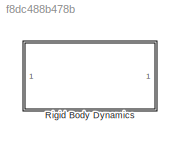
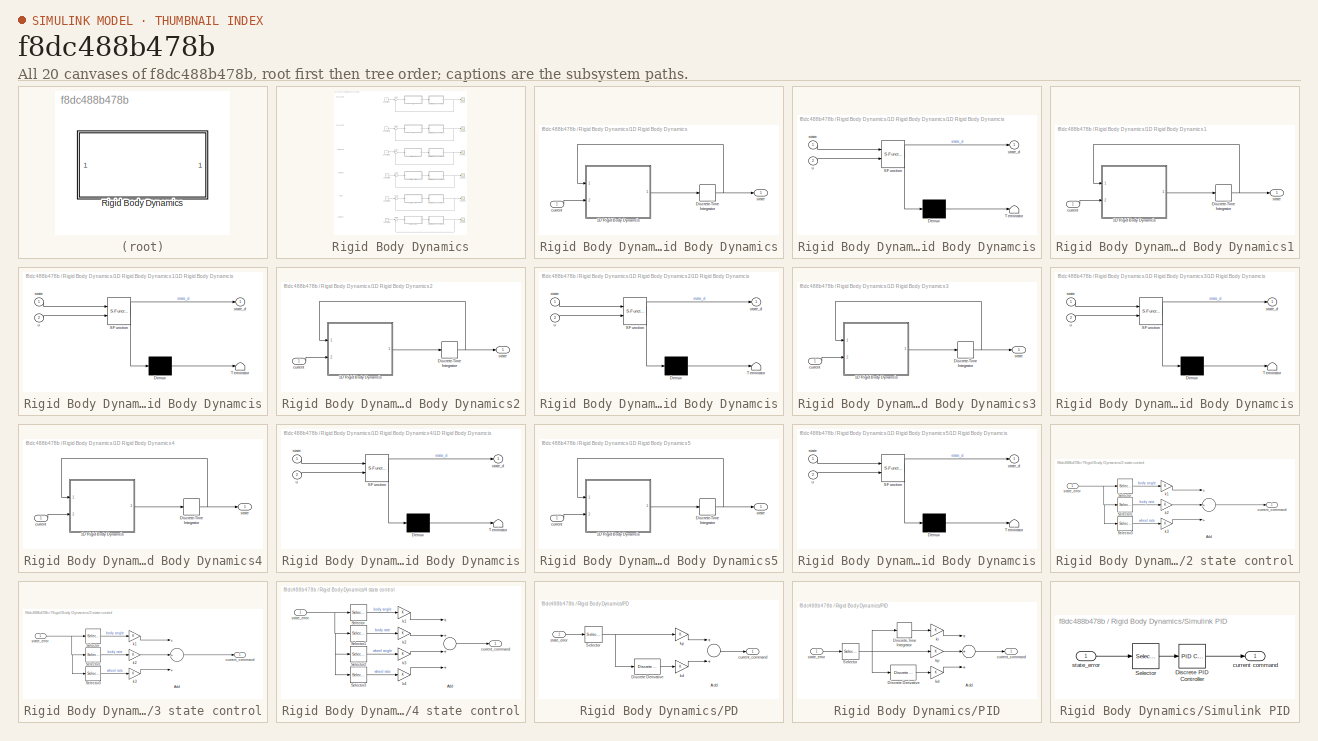
[diagram: thumbnail index - all 20 canvases of the model, root first then tree order]
MODEL slx_f8dc488b478b
KIND model
CONFIG AbsTol = auto
CONFIG EnableMultiTasking = off
CONFIG FixedStep = auto
CONFIG MaxStep = auto
CONFIG MinStep = auto
CONFIG RelTol = 1e-3
CONFIG SampleTimeConstraint = Unconstrained
CONFIG Solver = VariableStepAuto
CONFIG SolverName = VariableStepAuto
CONFIG StartTime = 0.0
CONFIG StopTime = 10.0
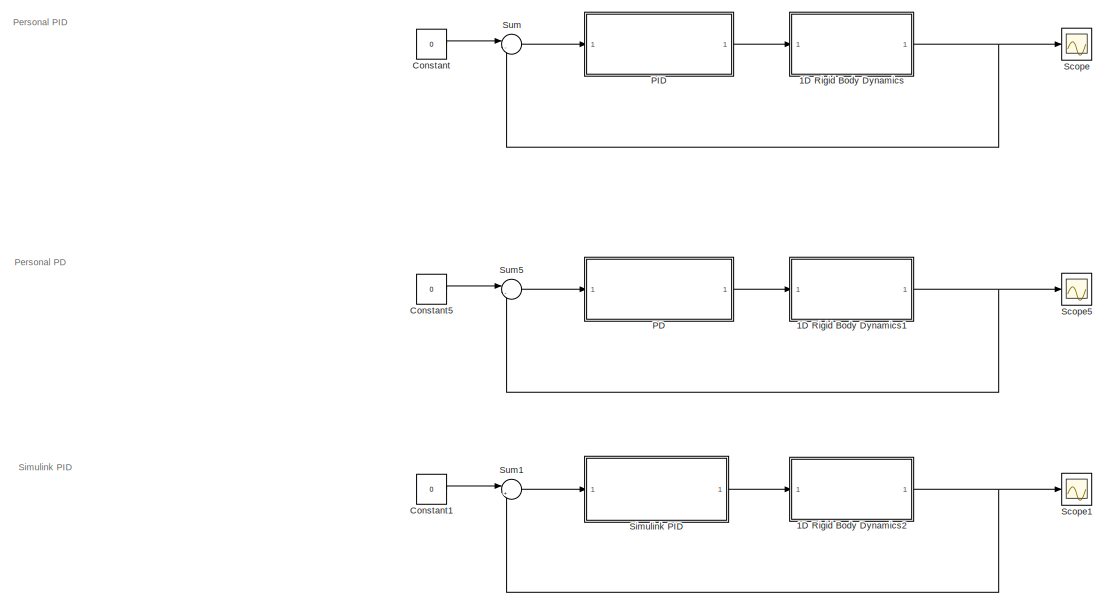
[diagram: Rigid Body Dynamics - part 1/2, full width, top band]
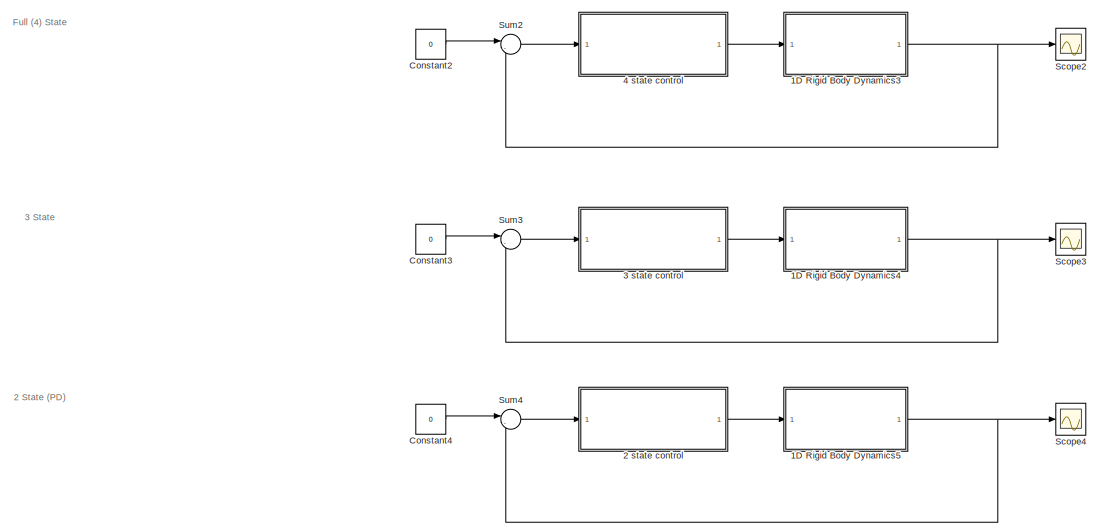
[diagram: Rigid Body Dynamics - part 2/2, full width, bottom band]
BLOCK [SubSystem] Rigid Body Dynamics
  Ports = []
  RequestExecContextInheritance = off
BLOCK [SubSystem] Rigid Body Dynamics/1D Rigid Body Dynamics
  Ports = [1, 1]
  RequestExecContextInheritance = off
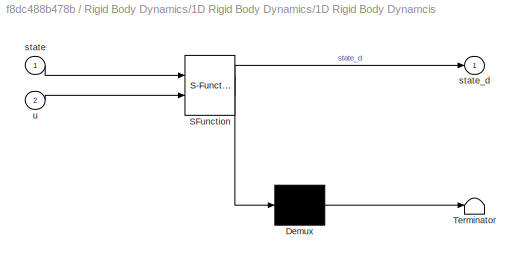
BLOCK [SubSystem] Rigid Body Dynamics/1D Rigid Body Dynamics/1D Rigid Body Dynamcis
  ErrorFcn = Stateflow.Translate.translate
  PermitHierarchicalResolution = ExplicitOnly
  Ports = [2, 1]
  RequestExecContextInheritance = off
  SFBlockType = MATLAB Function
  TreatAsAtomicUnit = on
BLOCK [Demux] Rigid Body Dynamics/1D Rigid Body Dynamics/1D Rigid Body Dynamcis/ Demux 
  Outputs = 1
  Ports = [1, 1]
BLOCK [S-Function] Rigid Body Dynamics/1D Rigid Body Dynamics/1D Rigid Body Dynamcis/ SFunction 
  EnableBusSupport = on
  FunctionName = sf_sfun
  PortCounts = [2 2]
  Ports = [2, 2]
  SFcnIsStateOwnerBlock = off
  SFunctionDeploymentMode = off
  Tag = Stateflow S-Function main 2
BLOCK [Terminator] Rigid Body Dynamics/1D Rigid Body Dynamics/1D Rigid Body Dynamcis/ Terminator 
BLOCK [Inport] Rigid Body Dynamics/1D Rigid Body Dynamics/1D Rigid Body Dynamcis/state
  IconDisplay = Port number
BLOCK [Outport] Rigid Body Dynamics/1D Rigid Body Dynamics/1D Rigid Body Dynamcis/state_d
  IconDisplay = Port number
BLOCK [Inport] Rigid Body Dynamics/1D Rigid Body Dynamics/1D Rigid Body Dynamcis/u
  IconDisplay = Port number
  Port = 2
BLOCK [DiscreteIntegrator] Rigid Body Dynamics/1D Rigid Body Dynamics/Discrete-Time Integrator
  ICPrevOutput = DiscIntNeverNeededParam
  ICPrevScaledInput = DiscIntNeverNeededParam
  InitialCondition = [0 0 0 0]
  InitialConditionSetting = Auto
  Ports = [1, 1]
  SampleTime = -1
BLOCK [Inport] Rigid Body Dynamics/1D Rigid Body Dynamics/current
  IconDisplay = Port number
BLOCK [Outport] Rigid Body Dynamics/1D Rigid Body Dynamics/state
  IconDisplay = Port number
BLOCK [SubSystem] Rigid Body Dynamics/1D Rigid Body Dynamics1
  Ports = [1, 1]
  RequestExecContextInheritance = off
BLOCK [SubSystem] Rigid Body Dynamics/1D Rigid Body Dynamics1/1D Rigid Body Dynamcis
  ErrorFcn = Stateflow.Translate.translate
  PermitHierarchicalResolution = ExplicitOnly
  Ports = [2, 1]
  RequestExecContextInheritance = off
  SFBlockType = MATLAB Function
  TreatAsAtomicUnit = on
BLOCK [Demux] Rigid Body Dynamics/1D Rigid Body Dynamics1/1D Rigid Body Dynamcis/ Demux 
  Outputs = 1
  Ports = [1, 1]
BLOCK [S-Function] Rigid Body Dynamics/1D Rigid Body Dynamics1/1D Rigid Body Dynamcis/ SFunction 
  EnableBusSupport = on
  FunctionName = sf_sfun
  PortCounts = [2 2]
  Ports = [2, 2]
  SFcnIsStateOwnerBlock = off
  SFunctionDeploymentMode = off
  Tag = Stateflow S-Function main 1
BLOCK [Terminator] Rigid Body Dynamics/1D Rigid Body Dynamics1/1D Rigid Body Dynamcis/ Terminator 
BLOCK [Inport] Rigid Body Dynamics/1D Rigid Body Dynamics1/1D Rigid Body Dynamcis/state
  IconDisplay = Port number
BLOCK [Outport] Rigid Body Dynamics/1D Rigid Body Dynamics1/1D Rigid Body Dynamcis/state_d
  IconDisplay = Port number
BLOCK [Inport] Rigid Body Dynamics/1D Rigid Body Dynamics1/1D Rigid Body Dynamcis/u
  IconDisplay = Port number
  Port = 2
BLOCK [DiscreteIntegrator] Rigid Body Dynamics/1D Rigid Body Dynamics1/Discrete-Time Integrator
  ICPrevOutput = DiscIntNeverNeededParam
  ICPrevScaledInput = DiscIntNeverNeededParam
  InitialCondition = [0 0 0 0]
  InitialConditionSetting = Auto
  Ports = [1, 1]
  SampleTime = -1
BLOCK [Inport] Rigid Body Dynamics/1D Rigid Body Dynamics1/current
  IconDisplay = Port number
BLOCK [Outport] Rigid Body Dynamics/1D Rigid Body Dynamics1/state
  IconDisplay = Port number
BLOCK [SubSystem] Rigid Body Dynamics/1D Rigid Body Dynamics2
  Ports = [1, 1]
  RequestExecContextInheritance = off
BLOCK [SubSystem] Rigid Body Dynamics/1D Rigid Body Dynamics2/1D Rigid Body Dynamcis
  ErrorFcn = Stateflow.Translate.translate
  PermitHierarchicalResolution = ExplicitOnly
  Ports = [2, 1]
  RequestExecContextInheritance = off
  SFBlockType = MATLAB Function
  TreatAsAtomicUnit = on
BLOCK [Demux] Rigid Body Dynamics/1D Rigid Body Dynamics2/1D Rigid Body Dynamcis/ Demux 
  Outputs = 1
  Ports = [1, 1]
BLOCK [S-Function] Rigid Body Dynamics/1D Rigid Body Dynamics2/1D Rigid Body Dynamcis/ SFunction 
  EnableBusSupport = on
  FunctionName = sf_sfun
  PortCounts = [2 2]
  Ports = [2, 2]
  SFcnIsStateOwnerBlock = off
  SFunctionDeploymentMode = off
  Tag = Stateflow S-Function main 3
BLOCK [Terminator] Rigid Body Dynamics/1D Rigid Body Dynamics2/1D Rigid Body Dynamcis/ Terminator 
BLOCK [Inport] Rigid Body Dynamics/1D Rigid Body Dynamics2/1D Rigid Body Dynamcis/state
  IconDisplay = Port number
BLOCK [Outport] Rigid Body Dynamics/1D Rigid Body Dynamics2/1D Rigid Body Dynamcis/state_d
  IconDisplay = Port number
BLOCK [Inport] Rigid Body Dynamics/1D Rigid Body Dynamics2/1D Rigid Body Dynamcis/u
  IconDisplay = Port number
  Port = 2
BLOCK [DiscreteIntegrator] Rigid Body Dynamics/1D Rigid Body Dynamics2/Discrete-Time Integrator
  ICPrevOutput = DiscIntNeverNeededParam
  ICPrevScaledInput = DiscIntNeverNeededParam
  InitialCondition = [0 0 0 0]
  InitialConditionSetting = Auto
  Ports = [1, 1]
  SampleTime = -1
BLOCK [Inport] Rigid Body Dynamics/1D Rigid Body Dynamics2/current
  IconDisplay = Port number
BLOCK [Outport] Rigid Body Dynamics/1D Rigid Body Dynamics2/state
  IconDisplay = Port number
BLOCK [SubSystem] Rigid Body Dynamics/1D Rigid Body Dynamics3
  Ports = [1, 1]
  RequestExecContextInheritance = off
BLOCK [SubSystem] Rigid Body Dynamics/1D Rigid Body Dynamics3/1D Rigid Body Dynamcis
  ErrorFcn = Stateflow.Translate.translate
  PermitHierarchicalResolution = ExplicitOnly
  Ports = [2, 1]
  RequestExecContextInheritance = off
  SFBlockType = MATLAB Function
  TreatAsAtomicUnit = on
BLOCK [Demux] Rigid Body Dynamics/1D Rigid Body Dynamics3/1D Rigid Body Dynamcis/ Demux 
  Outputs = 1
  Ports = [1, 1]
BLOCK [S-Function] Rigid Body Dynamics/1D Rigid Body Dynamics3/1D Rigid Body Dynamcis/ SFunction 
  EnableBusSupport = on
  FunctionName = sf_sfun
  PortCounts = [2 2]
  Ports = [2, 2]
  SFcnIsStateOwnerBlock = off
  SFunctionDeploymentMode = off
  Tag = Stateflow S-Function main 4
BLOCK [Terminator] Rigid Body Dynamics/1D Rigid Body Dynamics3/1D Rigid Body Dynamcis/ Terminator 
BLOCK [Inport] Rigid Body Dynamics/1D Rigid Body Dynamics3/1D Rigid Body Dynamcis/state
  IconDisplay = Port number
BLOCK [Outport] Rigid Body Dynamics/1D Rigid Body Dynamics3/1D Rigid Body Dynamcis/state_d
  IconDisplay = Port number
BLOCK [Inport] Rigid Body Dynamics/1D Rigid Body Dynamics3/1D Rigid Body Dynamcis/u
  IconDisplay = Port number
  Port = 2
BLOCK [DiscreteIntegrator] Rigid Body Dynamics/1D Rigid Body Dynamics3/Discrete-Time Integrator
  ICPrevOutput = DiscIntNeverNeededParam
  ICPrevScaledInput = DiscIntNeverNeededParam
  InitialCondition = [0 0 0 0]
  InitialConditionSetting = Auto
  Ports = [1, 1]
  SampleTime = -1
BLOCK [Inport] Rigid Body Dynamics/1D Rigid Body Dynamics3/current
  IconDisplay = Port number
BLOCK [Outport] Rigid Body Dynamics/1D Rigid Body Dynamics3/state
  IconDisplay = Port number
BLOCK [SubSystem] Rigid Body Dynamics/1D Rigid Body Dynamics4
  Ports = [1, 1]
  RequestExecContextInheritance = off
BLOCK [SubSystem] Rigid Body Dynamics/1D Rigid Body Dynamics4/1D Rigid Body Dynamcis
  ErrorFcn = Stateflow.Translate.translate
  PermitHierarchicalResolution = ExplicitOnly
  Ports = [2, 1]
  RequestExecContextInheritance = off
  SFBlockType = MATLAB Function
  TreatAsAtomicUnit = on
BLOCK [Demux] Rigid Body Dynamics/1D Rigid Body Dynamics4/1D Rigid Body Dynamcis/ Demux 
  Outputs = 1
  Ports = [1, 1]
BLOCK [S-Function] Rigid Body Dynamics/1D Rigid Body Dynamics4/1D Rigid Body Dynamcis/ SFunction 
  EnableBusSupport = on
  FunctionName = sf_sfun
  PortCounts = [2 2]
  Ports = [2, 2]
  SFcnIsStateOwnerBlock = off
  SFunctionDeploymentMode = off
  Tag = Stateflow S-Function main 5
BLOCK [Terminator] Rigid Body Dynamics/1D Rigid Body Dynamics4/1D Rigid Body Dynamcis/ Terminator 
BLOCK [Inport] Rigid Body Dynamics/1D Rigid Body Dynamics4/1D Rigid Body Dynamcis/state
  IconDisplay = Port number
BLOCK [Outport] Rigid Body Dynamics/1D Rigid Body Dynamics4/1D Rigid Body Dynamcis/state_d
  IconDisplay = Port number
BLOCK [Inport] Rigid Body Dynamics/1D Rigid Body Dynamics4/1D Rigid Body Dynamcis/u
  IconDisplay = Port number
  Port = 2
BLOCK [DiscreteIntegrator] Rigid Body Dynamics/1D Rigid Body Dynamics4/Discrete-Time Integrator
  ICPrevOutput = DiscIntNeverNeededParam
  ICPrevScaledInput = DiscIntNeverNeededParam
  InitialCondition = [0 0 0 0]
  InitialConditionSetting = Auto
  Ports = [1, 1]
  SampleTime = -1
BLOCK [Inport] Rigid Body Dynamics/1D Rigid Body Dynamics4/current
  IconDisplay = Port number
BLOCK [Outport] Rigid Body Dynamics/1D Rigid Body Dynamics4/state
  IconDisplay = Port number
BLOCK [SubSystem] Rigid Body Dynamics/1D Rigid Body Dynamics5
  Ports = [1, 1]
  RequestExecContextInheritance = off
BLOCK [SubSystem] Rigid Body Dynamics/1D Rigid Body Dynamics5/1D Rigid Body Dynamcis
  ErrorFcn = Stateflow.Translate.translate
  PermitHierarchicalResolution = ExplicitOnly
  Ports = [2, 1]
  RequestExecContextInheritance = off
  SFBlockType = MATLAB Function
  TreatAsAtomicUnit = on
BLOCK [Demux] Rigid Body Dynamics/1D Rigid Body Dynamics5/1D Rigid Body Dynamcis/ Demux 
  Outputs = 1
  Ports = [1, 1]
BLOCK [S-Function] Rigid Body Dynamics/1D Rigid Body Dynamics5/1D Rigid Body Dynamcis/ SFunction 
  EnableBusSupport = on
  FunctionName = sf_sfun
  PortCounts = [2 2]
  Ports = [2, 2]
  SFcnIsStateOwnerBlock = off
  SFunctionDeploymentMode = off
  Tag = Stateflow S-Function main 6
BLOCK [Terminator] Rigid Body Dynamics/1D Rigid Body Dynamics5/1D Rigid Body Dynamcis/ Terminator 
BLOCK [Inport] Rigid Body Dynamics/1D Rigid Body Dynamics5/1D Rigid Body Dynamcis/state
  IconDisplay = Port number
BLOCK [Outport] Rigid Body Dynamics/1D Rigid Body Dynamics5/1D Rigid Body Dynamcis/state_d
  IconDisplay = Port number
BLOCK [Inport] Rigid Body Dynamics/1D Rigid Body Dynamics5/1D Rigid Body Dynamcis/u
  IconDisplay = Port number
  Port = 2
BLOCK [DiscreteIntegrator] Rigid Body Dynamics/1D Rigid Body Dynamics5/Discrete-Time Integrator
  ICPrevOutput = DiscIntNeverNeededParam
  ICPrevScaledInput = DiscIntNeverNeededParam
  InitialCondition = [0 0 0 0]
  InitialConditionSetting = Auto
  Ports = [1, 1]
  SampleTime = -1
BLOCK [Inport] Rigid Body Dynamics/1D Rigid Body Dynamics5/current
  IconDisplay = Port number
BLOCK [Outport] Rigid Body Dynamics/1D Rigid Body Dynamics5/state
  IconDisplay = Port number
BLOCK [SubSystem] Rigid Body Dynamics/2 state control
  Ports = [1, 1]
  RequestExecContextInheritance = off
BLOCK [Sum] Rigid Body Dynamics/2 state control/Add
  InputSameDT = off
  Inputs = +++
  OutDataTypeStr = Inherit: Inherit via internal rule
  Ports = [3, 1]
  SaturateOnIntegerOverflow = off
BLOCK [Selector] Rigid Body Dynamics/2 state control/Selector
  IndexOptions = Index vector (dialog)
  Indices = [1]
  InputPortWidth = 4
  OutputSizes = 1
  Ports = [1, 1]
BLOCK [Selector] Rigid Body Dynamics/2 state control/Selector1
  IndexOptions = Index vector (dialog)
  Indices = [2]
  InputPortWidth = 4
  OutputSizes = 1
  Ports = [1, 1]
BLOCK [Selector] Rigid Body Dynamics/2 state control/Selector3
  IndexOptions = Index vector (dialog)
  Indices = [4]
  InputPortWidth = 4
  OutputSizes = 1
  Ports = [1, 1]
BLOCK [Outport] Rigid Body Dynamics/2 state control/current_command
  IconDisplay = Port number
BLOCK [Gain] Rigid Body Dynamics/2 state control/k1
  OutDataTypeStr = Inherit: Inherit via internal rule
  ParamDataTypeStr = Inherit: Inherit via internal rule
  SaturateOnIntegerOverflow = off
BLOCK [Gain] Rigid Body Dynamics/2 state control/k2
  OutDataTypeStr = Inherit: Inherit via internal rule
  ParamDataTypeStr = Inherit: Inherit via internal rule
  SaturateOnIntegerOverflow = off
BLOCK [Gain] Rigid Body Dynamics/2 state control/k3
  OutDataTypeStr = Inherit: Inherit via internal rule
  ParamDataTypeStr = Inherit: Inherit via internal rule
  SaturateOnIntegerOverflow = off
BLOCK [Inport] Rigid Body Dynamics/2 state control/state_error
  IconDisplay = Port number
BLOCK [SubSystem] Rigid Body Dynamics/3 state control
  Ports = [1, 1]
  RequestExecContextInheritance = off
BLOCK [Sum] Rigid Body Dynamics/3 state control/Add
  InputSameDT = off
  Inputs = +++
  OutDataTypeStr = Inherit: Inherit via internal rule
  Ports = [3, 1]
  SaturateOnIntegerOverflow = off
BLOCK [Selector] Rigid Body Dynamics/3 state control/Selector
  IndexOptions = Index vector (dialog)
  Indices = [1]
  InputPortWidth = 4
  OutputSizes = 1
  Ports = [1, 1]
BLOCK [Selector] Rigid Body Dynamics/3 state control/Selector1
  IndexOptions = Index vector (dialog)
  Indices = [2]
  InputPortWidth = 4
  OutputSizes = 1
  Ports = [1, 1]
BLOCK [Selector] Rigid Body Dynamics/3 state control/Selector3
  IndexOptions = Index vector (dialog)
  Indices = [4]
  InputPortWidth = 4
  OutputSizes = 1
  Ports = [1, 1]
BLOCK [Outport] Rigid Body Dynamics/3 state control/current_command
  IconDisplay = Port number
BLOCK [Gain] Rigid Body Dynamics/3 state control/k1
  OutDataTypeStr = Inherit: Inherit via internal rule
  ParamDataTypeStr = Inherit: Inherit via internal rule
  SaturateOnIntegerOverflow = off
BLOCK [Gain] Rigid Body Dynamics/3 state control/k2
  OutDataTypeStr = Inherit: Inherit via internal rule
  ParamDataTypeStr = Inherit: Inherit via internal rule
  SaturateOnIntegerOverflow = off
BLOCK [Gain] Rigid Body Dynamics/3 state control/k3
  OutDataTypeStr = Inherit: Inherit via internal rule
  ParamDataTypeStr = Inherit: Inherit via internal rule
  SaturateOnIntegerOverflow = off
BLOCK [Inport] Rigid Body Dynamics/3 state control/state_error
  IconDisplay = Port number
BLOCK [SubSystem] Rigid Body Dynamics/4 state control
  Ports = [1, 1]
  RequestExecContextInheritance = off
BLOCK [Sum] Rigid Body Dynamics/4 state control/Add
  InputSameDT = off
  Inputs = ++++
  OutDataTypeStr = Inherit: Inherit via internal rule
  Ports = [4, 1]
  SaturateOnIntegerOverflow = off
BLOCK [Selector] Rigid Body Dynamics/4 state control/Selector
  IndexOptions = Index vector (dialog)
  Indices = [1]
  InputPortWidth = 4
  OutputSizes = 1
  Ports = [1, 1]
BLOCK [Selector] Rigid Body Dynamics/4 state control/Selector1
  IndexOptions = Index vector (dialog)
  Indices = [2]
  InputPortWidth = 4
  OutputSizes = 1
  Ports = [1, 1]
BLOCK [Selector] Rigid Body Dynamics/4 state control/Selector2
  IndexOptions = Index vector (dialog)
  Indices = [3]
  InputPortWidth = 4
  OutputSizes = 1
  Ports = [1, 1]
BLOCK [Selector] Rigid Body Dynamics/4 state control/Selector3
  IndexOptions = Index vector (dialog)
  Indices = [4]
  InputPortWidth = 4
  OutputSizes = 1
  Ports = [1, 1]
BLOCK [Outport] Rigid Body Dynamics/4 state control/current_command
  IconDisplay = Port number
BLOCK [Gain] Rigid Body Dynamics/4 state control/k1
  OutDataTypeStr = Inherit: Inherit via internal rule
  ParamDataTypeStr = Inherit: Inherit via internal rule
  SaturateOnIntegerOverflow = off
BLOCK [Gain] Rigid Body Dynamics/4 state control/k2
  OutDataTypeStr = Inherit: Inherit via internal rule
  ParamDataTypeStr = Inherit: Inherit via internal rule
  SaturateOnIntegerOverflow = off
BLOCK [Gain] Rigid Body Dynamics/4 state control/k3
  OutDataTypeStr = Inherit: Inherit via internal rule
  ParamDataTypeStr = Inherit: Inherit via internal rule
  SaturateOnIntegerOverflow = off
BLOCK [Gain] Rigid Body Dynamics/4 state control/k4
  OutDataTypeStr = Inherit: Inherit via internal rule
  ParamDataTypeStr = Inherit: Inherit via internal rule
  SaturateOnIntegerOverflow = off
BLOCK [Inport] Rigid Body Dynamics/4 state control/state_error
  IconDisplay = Port number
BLOCK [Constant] Rigid Body Dynamics/Constant
  Value = 0
BLOCK [Constant] Rigid Body Dynamics/Constant1
  Value = 0
BLOCK [Constant] Rigid Body Dynamics/Constant2
  Value = 0
BLOCK [Constant] Rigid Body Dynamics/Constant3
  Value = 0
BLOCK [Constant] Rigid Body Dynamics/Constant4
  Value = 0
BLOCK [Constant] Rigid Body Dynamics/Constant5
  Value = 0
BLOCK [SubSystem] Rigid Body Dynamics/PD
  Ports = [1, 1]
  RequestExecContextInheritance = off
BLOCK [Sum] Rigid Body Dynamics/PD/Add
  InputSameDT = off
  OutDataTypeStr = Inherit: Inherit via internal rule
  Ports = [2, 1]
  SaturateOnIntegerOverflow = off
BLOCK [Reference] Rigid Body Dynamics/PD/Discrete Derivative  REF=simulink/Discrete/Discrete Derivative
  Ports = [1, 1]
  SourceBlock = simulink/Discrete/Discrete Derivative
  SourceProductBaseCode = SL
  SourceProductName = Simulink
  SourceType = Discrete Derivative
BLOCK [Selector] Rigid Body Dynamics/PD/Selector
  IndexOptions = Index vector (dialog)
  Indices = [1]
  InputPortWidth = 4
  OutputSizes = 1
  Ports = [1, 1]
BLOCK [Outport] Rigid Body Dynamics/PD/current_command
  IconDisplay = Port number
BLOCK [Gain] Rigid Body Dynamics/PD/kd
  OutDataTypeStr = Inherit: Inherit via internal rule
  ParamDataTypeStr = Inherit: Inherit via internal rule
  SaturateOnIntegerOverflow = off
BLOCK [Gain] Rigid Body Dynamics/PD/kp
  OutDataTypeStr = Inherit: Inherit via internal rule
  ParamDataTypeStr = Inherit: Inherit via internal rule
  SaturateOnIntegerOverflow = off
BLOCK [Inport] Rigid Body Dynamics/PD/state_error
  IconDisplay = Port number
BLOCK [SubSystem] Rigid Body Dynamics/PID
  Ports = [1, 1]
  RequestExecContextInheritance = off
BLOCK [Sum] Rigid Body Dynamics/PID/Add
  InputSameDT = off
  Inputs = +++
  OutDataTypeStr = Inherit: Inherit via internal rule
  Ports = [3, 1]
  SaturateOnIntegerOverflow = off
BLOCK [Reference] Rigid Body Dynamics/PID/Discrete Derivative  REF=simulink/Discrete/Discrete Derivative
  Ports = [1, 1]
  SourceBlock = simulink/Discrete/Discrete Derivative
  SourceProductBaseCode = SL
  SourceProductName = Simulink
  SourceType = Discrete Derivative
BLOCK [DiscreteIntegrator] Rigid Body Dynamics/PID/Discrete-Time Integrator
  ICPrevOutput = DiscIntNeverNeededParam
  ICPrevScaledInput = DiscIntNeverNeededParam
  InitialConditionSetting = Auto
  Ports = [1, 1]
  SampleTime = -1
BLOCK [Selector] Rigid Body Dynamics/PID/Selector
  IndexOptions = Index vector (dialog)
  Indices = [1]
  InputPortWidth = 4
  OutputSizes = 1
  Ports = [1, 1]
BLOCK [Outport] Rigid Body Dynamics/PID/current_command
  IconDisplay = Port number
BLOCK [Gain] Rigid Body Dynamics/PID/kd
  OutDataTypeStr = Inherit: Inherit via internal rule
  ParamDataTypeStr = Inherit: Inherit via internal rule
  SaturateOnIntegerOverflow = off
BLOCK [Gain] Rigid Body Dynamics/PID/ki
  OutDataTypeStr = Inherit: Inherit via internal rule
  ParamDataTypeStr = Inherit: Inherit via internal rule
  SaturateOnIntegerOverflow = off
BLOCK [Gain] Rigid Body Dynamics/PID/kp
  OutDataTypeStr = Inherit: Inherit via internal rule
  ParamDataTypeStr = Inherit: Inherit via internal rule
  SaturateOnIntegerOverflow = off
BLOCK [Inport] Rigid Body Dynamics/PID/state_error
  IconDisplay = Port number
BLOCK [Scope] Rigid Body Dynamics/Scope
  Floating = off
  NumInputPorts = 1
  Ports = [1]
  ScopeSpecificationString = Simulink.scopes.TimeScopeBlockCfg('CurrentConfiguration', extmgr.ConfigurationSet(extmgr.Configuration('Core','General UI',true),extmgr.Configuration('Core','Source UI',true),extmgr.Configuration('Sources','WiredSimulink',true),extmgr.Configuration('Visuals','Time Domain',true),extmgr.Configuration('Tools','Plot Navigation',true),extmgr.Configuration('Tools','Measurements',true)),'Version','2018a'...<+1ch>
BLOCK [Scope] Rigid Body Dynamics/Scope1
  Floating = off
  NumInputPorts = 1
  Ports = [1]
  ScopeSpecificationString = Simulink.scopes.TimeScopeBlockCfg('CurrentConfiguration', extmgr.ConfigurationSet(extmgr.Configuration('Core','General UI',true),extmgr.Configuration('Core','Source UI',true),extmgr.Configuration('Sources','WiredSimulink',true,'DataLoggingVariableName','ScopeData1'),extmgr.Configuration('Visuals','Time Domain',true,'SerializedDisplays',{struct('MinYLimReal','-65924078448.90183','MaxYLimReal','1367...<+1546ch>
BLOCK [Scope] Rigid Body Dynamics/Scope2
  Floating = off
  NumInputPorts = 1
  Ports = [1]
  ScopeSpecificationString = Simulink.scopes.TimeScopeBlockCfg('CurrentConfiguration', extmgr.ConfigurationSet(extmgr.Configuration('Core','General UI',true),extmgr.Configuration('Core','Source UI',true),extmgr.Configuration('Sources','WiredSimulink',true,'DataLoggingVariableName','ScopeData2'),extmgr.Configuration('Visuals','Time Domain',true),extmgr.Configuration('Tools','Plot Navigation',true),extmgr.Configuration('Tools',...<+40ch>
BLOCK [Scope] Rigid Body Dynamics/Scope3
  Floating = off
  NumInputPorts = 1
  Ports = [1]
  ScopeSpecificationString = Simulink.scopes.TimeScopeBlockCfg('CurrentConfiguration', extmgr.ConfigurationSet(extmgr.Configuration('Core','General UI',true),extmgr.Configuration('Core','Source UI',true),extmgr.Configuration('Sources','WiredSimulink',true,'DataLoggingVariableName','ScopeData3'),extmgr.Configuration('Visuals','Time Domain',true),extmgr.Configuration('Tools','Plot Navigation',true),extmgr.Configuration('Tools',...<+40ch>
BLOCK [Scope] Rigid Body Dynamics/Scope4
  Floating = off
  NumInputPorts = 1
  Ports = [1]
  ScopeSpecificationString = Simulink.scopes.TimeScopeBlockCfg('CurrentConfiguration', extmgr.ConfigurationSet(extmgr.Configuration('Core','General UI',true),extmgr.Configuration('Core','Source UI',true),extmgr.Configuration('Sources','WiredSimulink',true,'DataLoggingVariableName','ScopeData4'),extmgr.Configuration('Visuals','Time Domain',true),extmgr.Configuration('Tools','Plot Navigation',true),extmgr.Configuration('Tools',...<+40ch>
BLOCK [Scope] Rigid Body Dynamics/Scope5
  Floating = off
  NumInputPorts = 1
  Ports = [1]
  ScopeSpecificationString = Simulink.scopes.TimeScopeBlockCfg('CurrentConfiguration', extmgr.ConfigurationSet(extmgr.Configuration('Core','General UI',true),extmgr.Configuration('Core','Source UI',true),extmgr.Configuration('Sources','WiredSimulink',true,'DataLoggingVariableName','ScopeData5'),extmgr.Configuration('Visuals','Time Domain',true),extmgr.Configuration('Tools','Plot Navigation',true),extmgr.Configuration('Tools',...<+40ch>
BLOCK [SubSystem] Rigid Body Dynamics/Simulink PID
  Ports = [1, 1]
  RequestExecContextInheritance = off
BLOCK [Reference] Rigid Body Dynamics/Simulink PID/Discrete PID Controller  REF=simulink/Continuous/PID Controller
  Ports = [1, 1]
  SourceBlock = simulink/Continuous/PID Controller
  SourceProductBaseCode = SL
  SourceProductName = Simulink
  SourceType = PID 1dof
BLOCK [Selector] Rigid Body Dynamics/Simulink PID/Selector
  IndexOptions = Index vector (dialog)
  Indices = [1]
  InputPortWidth = 4
  OutputSizes = 1
  Ports = [1, 1]
BLOCK [Outport] Rigid Body Dynamics/Simulink PID/current command
  IconDisplay = Port number
BLOCK [Inport] Rigid Body Dynamics/Simulink PID/state_error
  IconDisplay = Port number
BLOCK [Sum] Rigid Body Dynamics/Sum
  IconShape = round
  InputSameDT = off
  Inputs = |-+
  OutDataTypeStr = Inherit: Inherit via internal rule
  Ports = [2, 1]
  SaturateOnIntegerOverflow = off
BLOCK [Sum] Rigid Body Dynamics/Sum1
  IconShape = round
  InputSameDT = off
  Inputs = |+-
  OutDataTypeStr = Inherit: Inherit via internal rule
  Ports = [2, 1]
  SaturateOnIntegerOverflow = off
BLOCK [Sum] Rigid Body Dynamics/Sum2
  IconShape = round
  InputSameDT = off
  Inputs = |-+
  OutDataTypeStr = Inherit: Inherit via internal rule
  Ports = [2, 1]
  SaturateOnIntegerOverflow = off
BLOCK [Sum] Rigid Body Dynamics/Sum3
  IconShape = round
  InputSameDT = off
  Inputs = |-+
  OutDataTypeStr = Inherit: Inherit via internal rule
  Ports = [2, 1]
  SaturateOnIntegerOverflow = off
BLOCK [Sum] Rigid Body Dynamics/Sum4
  IconShape = round
  InputSameDT = off
  Inputs = |-+
  OutDataTypeStr = Inherit: Inherit via internal rule
  Ports = [2, 1]
  SaturateOnIntegerOverflow = off
BLOCK [Sum] Rigid Body Dynamics/Sum5
  IconShape = round
  InputSameDT = off
  Inputs = |-+
  OutDataTypeStr = Inherit: Inherit via internal rule
  Ports = [2, 1]
  SaturateOnIntegerOverflow = off
ANNOTATION Rigid Body Dynamics: 2 State (PD)
ANNOTATION Rigid Body Dynamics: 3 State
ANNOTATION Rigid Body Dynamics: Full (4) State
ANNOTATION Rigid Body Dynamics: Personal PD
ANNOTATION Rigid Body Dynamics: Personal PID
ANNOTATION Rigid Body Dynamics: Simulink PID
LINE Rigid Body Dynamics/1D Rigid Body Dynamics/1D Rigid Body Dynamcis:1 -> Rigid Body Dynamics/1D Rigid Body Dynamics/Discrete-Time Integrator:1
NET Rigid Body Dynamics/1D Rigid Body Dynamics/Discrete-Time Integrator:1 -> Rigid Body Dynamics/1D Rigid Body Dynamics/1D Rigid Body Dynamcis:1, Rigid Body Dynamics/1D Rigid Body Dynamics/state:1
LINE Rigid Body Dynamics/1D Rigid Body Dynamics/current:1 -> Rigid Body Dynamics/1D Rigid Body Dynamics/1D Rigid Body Dynamcis:2
LINE Rigid Body Dynamics/1D Rigid Body Dynamics1/1D Rigid Body Dynamcis:1 -> Rigid Body Dynamics/1D Rigid Body Dynamics1/Discrete-Time Integrator:1
NET Rigid Body Dynamics/1D Rigid Body Dynamics1/Discrete-Time Integrator:1 -> Rigid Body Dynamics/1D Rigid Body Dynamics1/1D Rigid Body Dynamcis:1, Rigid Body Dynamics/1D Rigid Body Dynamics1/state:1
LINE Rigid Body Dynamics/1D Rigid Body Dynamics1/current:1 -> Rigid Body Dynamics/1D Rigid Body Dynamics1/1D Rigid Body Dynamcis:2
NET Rigid Body Dynamics/1D Rigid Body Dynamics1:1 -> Rigid Body Dynamics/Scope5:1, Rigid Body Dynamics/Sum5:2
LINE Rigid Body Dynamics/1D Rigid Body Dynamics2/1D Rigid Body Dynamcis:1 -> Rigid Body Dynamics/1D Rigid Body Dynamics2/Discrete-Time Integrator:1
NET Rigid Body Dynamics/1D Rigid Body Dynamics2/Discrete-Time Integrator:1 -> Rigid Body Dynamics/1D Rigid Body Dynamics2/1D Rigid Body Dynamcis:1, Rigid Body Dynamics/1D Rigid Body Dynamics2/state:1
LINE Rigid Body Dynamics/1D Rigid Body Dynamics2/current:1 -> Rigid Body Dynamics/1D Rigid Body Dynamics2/1D Rigid Body Dynamcis:2
NET Rigid Body Dynamics/1D Rigid Body Dynamics2:1 -> Rigid Body Dynamics/Scope1:1, Rigid Body Dynamics/Sum1:2
LINE Rigid Body Dynamics/1D Rigid Body Dynamics3/1D Rigid Body Dynamcis:1 -> Rigid Body Dynamics/1D Rigid Body Dynamics3/Discrete-Time Integrator:1
NET Rigid Body Dynamics/1D Rigid Body Dynamics3/Discrete-Time Integrator:1 -> Rigid Body Dynamics/1D Rigid Body Dynamics3/1D Rigid Body Dynamcis:1, Rigid Body Dynamics/1D Rigid Body Dynamics3/state:1
LINE Rigid Body Dynamics/1D Rigid Body Dynamics3/current:1 -> Rigid Body Dynamics/1D Rigid Body Dynamics3/1D Rigid Body Dynamcis:2
NET Rigid Body Dynamics/1D Rigid Body Dynamics3:1 -> Rigid Body Dynamics/Scope2:1, Rigid Body Dynamics/Sum2:2
LINE Rigid Body Dynamics/1D Rigid Body Dynamics4/1D Rigid Body Dynamcis:1 -> Rigid Body Dynamics/1D Rigid Body Dynamics4/Discrete-Time Integrator:1
NET Rigid Body Dynamics/1D Rigid Body Dynamics4/Discrete-Time Integrator:1 -> Rigid Body Dynamics/1D Rigid Body Dynamics4/1D Rigid Body Dynamcis:1, Rigid Body Dynamics/1D Rigid Body Dynamics4/state:1
LINE Rigid Body Dynamics/1D Rigid Body Dynamics4/current:1 -> Rigid Body Dynamics/1D Rigid Body Dynamics4/1D Rigid Body Dynamcis:2
NET Rigid Body Dynamics/1D Rigid Body Dynamics4:1 -> Rigid Body Dynamics/Scope3:1, Rigid Body Dynamics/Sum3:2
LINE Rigid Body Dynamics/1D Rigid Body Dynamics5/1D Rigid Body Dynamcis:1 -> Rigid Body Dynamics/1D Rigid Body Dynamics5/Discrete-Time Integrator:1
NET Rigid Body Dynamics/1D Rigid Body Dynamics5/Discrete-Time Integrator:1 -> Rigid Body Dynamics/1D Rigid Body Dynamics5/1D Rigid Body Dynamcis:1, Rigid Body Dynamics/1D Rigid Body Dynamics5/state:1
LINE Rigid Body Dynamics/1D Rigid Body Dynamics5/current:1 -> Rigid Body Dynamics/1D Rigid Body Dynamics5/1D Rigid Body Dynamcis:2
NET Rigid Body Dynamics/1D Rigid Body Dynamics5:1 -> Rigid Body Dynamics/Scope4:1, Rigid Body Dynamics/Sum4:2
NET Rigid Body Dynamics/1D Rigid Body Dynamics:1 -> Rigid Body Dynamics/Scope:1, Rigid Body Dynamics/Sum:2
LINE Rigid Body Dynamics/2 state control/Add:1 -> Rigid Body Dynamics/2 state control/current_command:1
LINE Rigid Body Dynamics/2 state control/Selector1:1 -> Rigid Body Dynamics/2 state control/k2:1
LINE Rigid Body Dynamics/2 state control/Selector3:1 -> Rigid Body Dynamics/2 state control/k3:1
LINE Rigid Body Dynamics/2 state control/Selector:1 -> Rigid Body Dynamics/2 state control/k1:1
LINE Rigid Body Dynamics/2 state control/k1:1 -> Rigid Body Dynamics/2 state control/Add:1
LINE Rigid Body Dynamics/2 state control/k2:1 -> Rigid Body Dynamics/2 state control/Add:2
LINE Rigid Body Dynamics/2 state control/k3:1 -> Rigid Body Dynamics/2 state control/Add:3
NET Rigid Body Dynamics/2 state control/state_error:1 -> Rigid Body Dynamics/2 state control/Selector1:1, Rigid Body Dynamics/2 state control/Selector3:1, Rigid Body Dynamics/2 state control/Selector:1
LINE Rigid Body Dynamics/2 state control:1 -> Rigid Body Dynamics/1D Rigid Body Dynamics5:1
LINE Rigid Body Dynamics/3 state control/Add:1 -> Rigid Body Dynamics/3 state control/current_command:1
LINE Rigid Body Dynamics/3 state control/Selector1:1 -> Rigid Body Dynamics/3 state control/k2:1
LINE Rigid Body Dynamics/3 state control/Selector3:1 -> Rigid Body Dynamics/3 state control/k3:1
LINE Rigid Body Dynamics/3 state control/Selector:1 -> Rigid Body Dynamics/3 state control/k1:1
LINE Rigid Body Dynamics/3 state control/k1:1 -> Rigid Body Dynamics/3 state control/Add:1
LINE Rigid Body Dynamics/3 state control/k2:1 -> Rigid Body Dynamics/3 state control/Add:2
LINE Rigid Body Dynamics/3 state control/k3:1 -> Rigid Body Dynamics/3 state control/Add:3
NET Rigid Body Dynamics/3 state control/state_error:1 -> Rigid Body Dynamics/3 state control/Selector1:1, Rigid Body Dynamics/3 state control/Selector3:1, Rigid Body Dynamics/3 state control/Selector:1
LINE Rigid Body Dynamics/3 state control:1 -> Rigid Body Dynamics/1D Rigid Body Dynamics4:1
LINE Rigid Body Dynamics/4 state control/Add:1 -> Rigid Body Dynamics/4 state control/current_command:1
LINE Rigid Body Dynamics/4 state control/Selector1:1 -> Rigid Body Dynamics/4 state control/k2:1
LINE Rigid Body Dynamics/4 state control/Selector2:1 -> Rigid Body Dynamics/4 state control/k3:1
LINE Rigid Body Dynamics/4 state control/Selector3:1 -> Rigid Body Dynamics/4 state control/k4:1
LINE Rigid Body Dynamics/4 state control/Selector:1 -> Rigid Body Dynamics/4 state control/k1:1
LINE Rigid Body Dynamics/4 state control/k1:1 -> Rigid Body Dynamics/4 state control/Add:1
LINE Rigid Body Dynamics/4 state control/k2:1 -> Rigid Body Dynamics/4 state control/Add:2
LINE Rigid Body Dynamics/4 state control/k3:1 -> Rigid Body Dynamics/4 state control/Add:3
LINE Rigid Body Dynamics/4 state control/k4:1 -> Rigid Body Dynamics/4 state control/Add:4
NET Rigid Body Dynamics/4 state control/state_error:1 -> Rigid Body Dynamics/4 state control/Selector1:1, Rigid Body Dynamics/4 state control/Selector2:1, Rigid Body Dynamics/4 state control/Selector3:1, Rigid Body Dynamics/4 state control/Selector:1
LINE Rigid Body Dynamics/4 state control:1 -> Rigid Body Dynamics/1D Rigid Body Dynamics3:1
LINE Rigid Body Dynamics/Constant1:1 -> Rigid Body Dynamics/Sum1:1
LINE Rigid Body Dynamics/Constant2:1 -> Rigid Body Dynamics/Sum2:1
LINE Rigid Body Dynamics/Constant3:1 -> Rigid Body Dynamics/Sum3:1
LINE Rigid Body Dynamics/Constant4:1 -> Rigid Body Dynamics/Sum4:1
LINE Rigid Body Dynamics/Constant5:1 -> Rigid Body Dynamics/Sum5:1
LINE Rigid Body Dynamics/Constant:1 -> Rigid Body Dynamics/Sum:1
LINE Rigid Body Dynamics/PD/Add:1 -> Rigid Body Dynamics/PD/current_command:1
LINE Rigid Body Dynamics/PD/Discrete Derivative:1 -> Rigid Body Dynamics/PD/kd:1
NET Rigid Body Dynamics/PD/Selector:1 -> Rigid Body Dynamics/PD/Discrete Derivative:1, Rigid Body Dynamics/PD/kp:1
LINE Rigid Body Dynamics/PD/kd:1 -> Rigid Body Dynamics/PD/Add:2
LINE Rigid Body Dynamics/PD/kp:1 -> Rigid Body Dynamics/PD/Add:1
LINE Rigid Body Dynamics/PD/state_error:1 -> Rigid Body Dynamics/PD/Selector:1
LINE Rigid Body Dynamics/PD:1 -> Rigid Body Dynamics/1D Rigid Body Dynamics1:1
LINE Rigid Body Dynamics/PID/Add:1 -> Rigid Body Dynamics/PID/current_command:1
LINE Rigid Body Dynamics/PID/Discrete Derivative:1 -> Rigid Body Dynamics/PID/kd:1
LINE Rigid Body Dynamics/PID/Discrete-Time Integrator:1 -> Rigid Body Dynamics/PID/ki:1
NET Rigid Body Dynamics/PID/Selector:1 -> Rigid Body Dynamics/PID/Discrete Derivative:1, Rigid Body Dynamics/PID/Discrete-Time Integrator:1, Rigid Body Dynamics/PID/kp:1
LINE Rigid Body Dynamics/PID/kd:1 -> Rigid Body Dynamics/PID/Add:3
LINE Rigid Body Dynamics/PID/ki:1 -> Rigid Body Dynamics/PID/Add:1
LINE Rigid Body Dynamics/PID/kp:1 -> Rigid Body Dynamics/PID/Add:2
LINE Rigid Body Dynamics/PID/state_error:1 -> Rigid Body Dynamics/PID/Selector:1
LINE Rigid Body Dynamics/PID:1 -> Rigid Body Dynamics/1D Rigid Body Dynamics:1
LINE Rigid Body Dynamics/Simulink PID/Discrete PID Controller:1 -> Rigid Body Dynamics/Simulink PID/current command:1
LINE Rigid Body Dynamics/Simulink PID/Selector:1 -> Rigid Body Dynamics/Simulink PID/Discrete PID Controller:1
LINE Rigid Body Dynamics/Simulink PID/state_error:1 -> Rigid Body Dynamics/Simulink PID/Selector:1
LINE Rigid Body Dynamics/Simulink PID:1 -> Rigid Body Dynamics/1D Rigid Body Dynamics2:1
LINE Rigid Body Dynamics/Sum1:1 -> Rigid Body Dynamics/Simulink PID:1
LINE Rigid Body Dynamics/Sum2:1 -> Rigid Body Dynamics/4 state control:1
LINE Rigid Body Dynamics/Sum3:1 -> Rigid Body Dynamics/3 state control:1
LINE Rigid Body Dynamics/Sum4:1 -> Rigid Body Dynamics/2 state control:1
LINE Rigid Body Dynamics/Sum5:1 -> Rigid Body Dynamics/PD:1
LINE Rigid Body Dynamics/Sum:1 -> Rigid Body Dynamics/PID:1
note: NET lines group one-source signal fan-out (src -> all destinations, sorted); 1:1 wires keep LINE
CHART Rigid Body Dynamics/1D Rigid Body Dynamics1/1D Rigid Body Dynamcis states=1 transitions=1
  STATE_LABEL 'eML_blk_kernel()'
  STATE_LABEL 'SCRIPT:\nfunction state_d = dynamics_1d(state, u)\nstate_d = zeros(4,1);\n\nl=.085;%m\nlb=.075;%m\nmb=.419;%kg\nmw=.204;%kg\nIb=3.34*10^-3;\nIw=.57*10^-3;\nCb=1.02*10^-3;\nCw=.05*10^-3;\ng=9.81;\nk=25.1*10^-3;\n\ntheta_b=state(1);\ntheta_bdot=state(2);\ntheta_wdot=state(4);\n\nf1=theta_bdot;\nf2=((mb*lb+mw*l)*g*sin(theta_b)-k*u-Cb*theta_bdot+Cw*theta_wdot)/(Ib+mw*l^2);\nf3=theta_wdot;\nf4=(Ib+Iw+mw*l^2)*(k*u-Cw*theta_w...<+153ch>'  <repeated x6 — deduplicated; at blocks: 1D Rigid Body Dynamcis>
CHART Rigid Body Dynamics/1D Rigid Body Dynamics/1D Rigid Body Dynamcis states=1 transitions=1
  STATE_LABEL 'eML_blk_kernel()'
CHART Rigid Body Dynamics/1D Rigid Body Dynamics2/1D Rigid Body Dynamcis states=1 transitions=1
  STATE_LABEL 'eML_blk_kernel()'
CHART Rigid Body Dynamics/1D Rigid Body Dynamics3/1D Rigid Body Dynamcis states=1 transitions=1
  STATE_LABEL 'eML_blk_kernel()'
CHART Rigid Body Dynamics/1D Rigid Body Dynamics4/1D Rigid Body Dynamcis states=1 transitions=1
  STATE_LABEL 'eML_blk_kernel()'
CHART Rigid Body Dynamics/1D Rigid Body Dynamics5/1D Rigid Body Dynamcis states=1 transitions=1
  STATE_LABEL 'eML_blk_kernel()'
